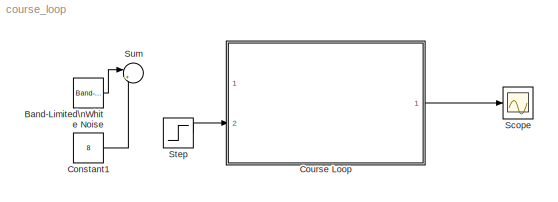
MODEL course_loop
KIND model
BLOCK [Reference] Band-Limited\nWhite Noise  REF=simulink/Sources/Band-Limited\nWhite Noise
  Cov = [0.1]
  Ports = [0, 1]
  SID = 59
  SourceBlock = simulink/Sources/Band-Limited\nWhite Noise
  SourceProductBaseCode = SL
  SourceProductName = Simulink
  SourceType = Band-Limited White Noise.
  Ts = 0.1
  VectorParams1D = on
  seed = [23341]
BLOCK [Constant] Constant1
  SID = 60
  Value = 8
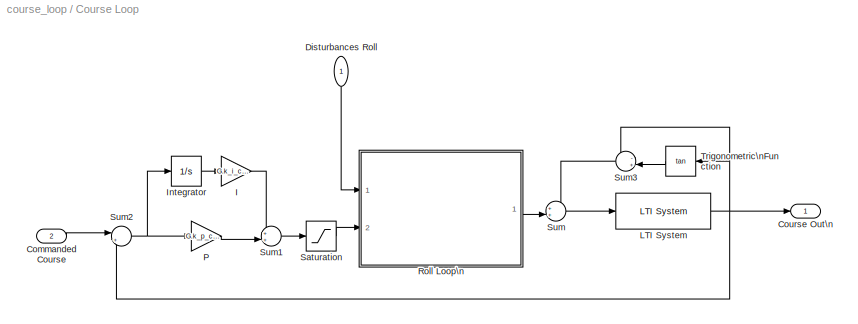
BLOCK [SubSystem] Course Loop
  Ports = [2, 1]
  RequestExecContextInheritance = off
  SID = 33
BLOCK [Inport] Course Loop/Commanded Course
  IconDisplay = Port number
  Port = 2
  SID = 38
BLOCK [Outport] Course Loop/Course Out\n
  IconDisplay = Port number
  SID = 37
BLOCK [Inport] Course Loop/Disturbances Roll
  IconDisplay = Port number
  SID = 34
BLOCK [Gain] Course Loop/I
  Gain = G.k_i_course
  OutDataTypeStr = Inherit: Inherit via internal rule
  ParamDataTypeStr = Inherit: Inherit via internal rule
  SID = 29
  SaturateOnIntegerOverflow = off
BLOCK [Integrator] Course Loop/Integrator
  Ports = [1, 1]
  SID = 28
BLOCK [Reference] Course Loop/LTI System  REF=cstblocks/LTI System
  IC = []
  Ports = [1, 1]
  SID = 31
  SourceBlock = cstblocks/LTI System
  SourceProductBaseCode = CT
  SourceProductName = Control System Toolbox
  SourceType = LTI Block
  sys = T_chi_phi
BLOCK [Gain] Course Loop/P
  Gain = G.k_p_course
  OutDataTypeStr = Inherit: Inherit via internal rule
  ParamDataTypeStr = Inherit: Inherit via internal rule
  SID = 27
  SaturateOnIntegerOverflow = off
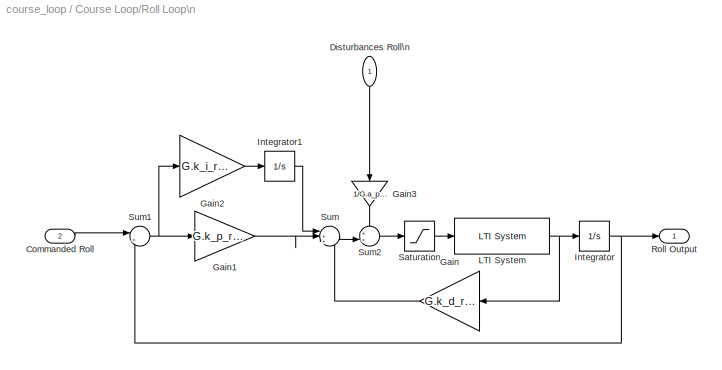
BLOCK [SubSystem] Course Loop/Roll Loop\n
  Ports = [2, 1]
  RequestExecContextInheritance = off
  SID = 21
BLOCK [Inport] Course Loop/Roll Loop\n/Commanded Roll
  IconDisplay = Port number
  Port = 2
  SID = 23
BLOCK [Inport] Course Loop/Roll Loop\n/Disturbances Roll\n
  IconDisplay = Port number
  SID = 22
BLOCK [Gain] Course Loop/Roll Loop\n/Gain
  Gain = G.k_d_roll
  OutDataTypeStr = Inherit: Inherit via internal rule
  ParamDataTypeStr = Inherit: Inherit via internal rule
  SID = 2
  SaturateOnIntegerOverflow = off
BLOCK [Gain] Course Loop/Roll Loop\n/Gain1
  Gain = G.k_p_roll
  OutDataTypeStr = Inherit: Inherit via internal rule
  ParamDataTypeStr = Inherit: Inherit via internal rule
  SID = 6
  SaturateOnIntegerOverflow = off
BLOCK [Gain] Course Loop/Roll Loop\n/Gain2
  Gain = G.k_i_roll
  OutDataTypeStr = Inherit: Inherit via internal rule
  ParamDataTypeStr = Inherit: Inherit via internal rule
  SID = 8
  SaturateOnIntegerOverflow = off
BLOCK [Gain] Course Loop/Roll Loop\n/Gain3
  Gain = 1/G.a_phi2
  OutDataTypeStr = Inherit: Inherit via internal rule
  ParamDataTypeStr = Inherit: Inherit via internal rule
  SID = 14
  SaturateOnIntegerOverflow = off
BLOCK [Integrator] Course Loop/Roll Loop\n/Integrator
  Ports = [1, 1]
  SID = 4
BLOCK [Integrator] Course Loop/Roll Loop\n/Integrator1
  Ports = [1, 1]
  SID = 7
BLOCK [Reference] Course Loop/Roll Loop\n/LTI System  REF=cstblocks/LTI System
  IC = []
  Ports = [1, 1]
  SID = 1
  SourceBlock = cstblocks/LTI System
  SourceProductBaseCode = CT
  SourceProductName = Control System Toolbox
  SourceType = LTI Block
  sys = T_p_delta_a
BLOCK [Outport] Course Loop/Roll Loop\n/Roll Output
  IconDisplay = Port number
  SID = 24
BLOCK [Saturate] Course Loop/Roll Loop\n/Saturation
  InputPortMap = u0
  LowerLimit = -G.delta_a_max
  Ports = [1, 1]
  SID = 20
  UpperLimit = G.delta_a_max
BLOCK [Sum] Course Loop/Roll Loop\n/Sum
  IconShape = round
  InputSameDT = off
  Inputs = |++-
  OutDataTypeStr = Inherit: Inherit via internal rule
  Ports = [3, 1]
  SID = 3
  SaturateOnIntegerOverflow = off
BLOCK [Sum] Course Loop/Roll Loop\n/Sum1
  IconShape = round
  InputSameDT = off
  Inputs = |+-
  OutDataTypeStr = Inherit: Inherit via internal rule
  Ports = [2, 1]
  SID = 5
  SaturateOnIntegerOverflow = off
BLOCK [Sum] Course Loop/Roll Loop\n/Sum2
  IconShape = round
  InputSameDT = off
  Inputs = ++|
  OutDataTypeStr = Inherit: Inherit via internal rule
  Ports = [2, 1]
  SID = 13
  SaturateOnIntegerOverflow = off
BLOCK [Saturate] Course Loop/Saturation
  InputPortMap = u0
  LowerLimit = -pi/6
  Ports = [1, 1]
  SID = 57
  UpperLimit = pi/6
BLOCK [Sum] Course Loop/Sum
  IconShape = round
  InputSameDT = off
  Inputs = ++|
  OutDataTypeStr = Inherit: Inherit via internal rule
  Ports = [2, 1]
  SID = 25
  SaturateOnIntegerOverflow = off
BLOCK [Sum] Course Loop/Sum1
  IconShape = round
  InputSameDT = off
  Inputs = ++|
  OutDataTypeStr = Inherit: Inherit via internal rule
  Ports = [2, 1]
  SID = 26
  SaturateOnIntegerOverflow = off
BLOCK [Sum] Course Loop/Sum2
  IconShape = round
  InputSameDT = off
  Inputs = |+-
  OutDataTypeStr = Inherit: Inherit via internal rule
  Ports = [2, 1]
  SID = 30
  SaturateOnIntegerOverflow = off
BLOCK [Sum] Course Loop/Sum3
  IconShape = round
  InputSameDT = off
  Inputs = -+|
  OutDataTypeStr = Inherit: Inherit via internal rule
  Ports = [2, 1]
  SID = 54
  SaturateOnIntegerOverflow = off
BLOCK [Trigonometry] Course Loop/Trigonometric\nFunction
  Operator = tan
  Ports = [1, 1]
  SID = 53
BLOCK [Scope] Scope
  Floating = off
  NumInputPorts = 1
  Ports = [1]
  SID = 44
  ScopeSpecificationString = Simulink.scopes.TimeScopeBlockCfg('CurrentConfiguration', extmgr.ConfigurationSet(extmgr.Configuration('Core','General UI',true),extmgr.Configuration('Core','Source UI',true),extmgr.Configuration('Sources','WiredSimulink',true),extmgr.Configuration('Visuals','Time Domain',true,'SerializedDisplays',{struct('MinYLimReal','-0.06273','MaxYLimReal','0.56461','YLabelReal','','MinYLimMag','0.00000','MaxY...<+1360ch>
BLOCK [Step] Step
  After = pi/6
  SID = 43
  SampleTime = 0
BLOCK [Sum] Sum
  IconShape = round
  InputSameDT = off
  Inputs = |++
  OutDataTypeStr = Inherit: Inherit via internal rule
  Ports = [2, 1]
  SID = 61
  SaturateOnIntegerOverflow = off
LINE Band-Limited\nWhite Noise:1 -> Sum:1
LINE Constant1:1 -> Sum:2
LINE Course Loop/Commanded Course:1 -> Course Loop/Sum2:1
LINE Course Loop/Disturbances Roll:1 -> Course Loop/Roll Loop\n:1
LINE Course Loop/I:1 -> Course Loop/Sum1:1
LINE Course Loop/Integrator:1 -> Course Loop/I:1
NET Course Loop/LTI System:1 -> Course Loop/Course Out\n:1, Course Loop/Sum2:2, Course Loop/Sum3:1, Course Loop/Trigonometric\nFunction:1
LINE Course Loop/P:1 -> Course Loop/Sum1:2
LINE Course Loop/Roll Loop\n/Commanded Roll:1 -> Course Loop/Roll Loop\n/Sum1:1
LINE Course Loop/Roll Loop\n/Disturbances Roll\n:1 -> Course Loop/Roll Loop\n/Gain3:1
LINE Course Loop/Roll Loop\n/Gain1:1 -> Course Loop/Roll Loop\n/Sum:2
LINE Course Loop/Roll Loop\n/Gain2:1 -> Course Loop/Roll Loop\n/Integrator1:1
LINE Course Loop/Roll Loop\n/Gain3:1 -> Course Loop/Roll Loop\n/Sum2:1
LINE Course Loop/Roll Loop\n/Gain:1 -> Course Loop/Roll Loop\n/Sum:3
LINE Course Loop/Roll Loop\n/Integrator1:1 -> Course Loop/Roll Loop\n/Sum:1
NET Course Loop/Roll Loop\n/Integrator:1 -> Course Loop/Roll Loop\n/Roll Output:1, Course Loop/Roll Loop\n/Sum1:2
NET Course Loop/Roll Loop\n/LTI System:1 -> Course Loop/Roll Loop\n/Gain:1, Course Loop/Roll Loop\n/Integrator:1
LINE Course Loop/Roll Loop\n/Saturation:1 -> Course Loop/Roll Loop\n/LTI System:1
NET Course Loop/Roll Loop\n/Sum1:1 -> Course Loop/Roll Loop\n/Gain1:1, Course Loop/Roll Loop\n/Gain2:1
LINE Course Loop/Roll Loop\n/Sum2:1 -> Course Loop/Roll Loop\n/Saturation:1
LINE Course Loop/Roll Loop\n/Sum:1 -> Course Loop/Roll Loop\n/Sum2:2
LINE Course Loop/Roll Loop\n:1 -> Course Loop/Sum:2
LINE Course Loop/Saturation:1 -> Course Loop/Roll Loop\n:2
LINE Course Loop/Sum1:1 -> Course Loop/Saturation:1
NET Course Loop/Sum2:1 -> Course Loop/Integrator:1, Course Loop/P:1
LINE Course Loop/Sum3:1 -> Course Loop/Sum:1
LINE Course Loop/Sum:1 -> Course Loop/LTI System:1
LINE Course Loop/Trigonometric\nFunction:1 -> Course Loop/Sum3:2
LINE Course Loop:1 -> Scope:1
LINE Step:1 -> Course Loop:2
note: NET lines group one-source signal fan-out (src -> all destinations, sorted); 1:1 wires keep LINE
